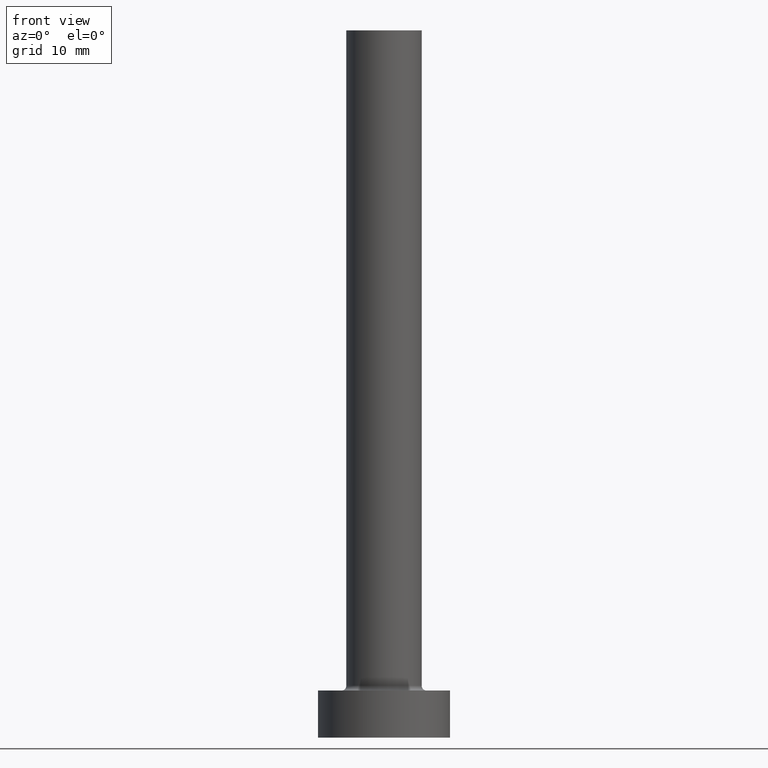
[diagram: clean part render]
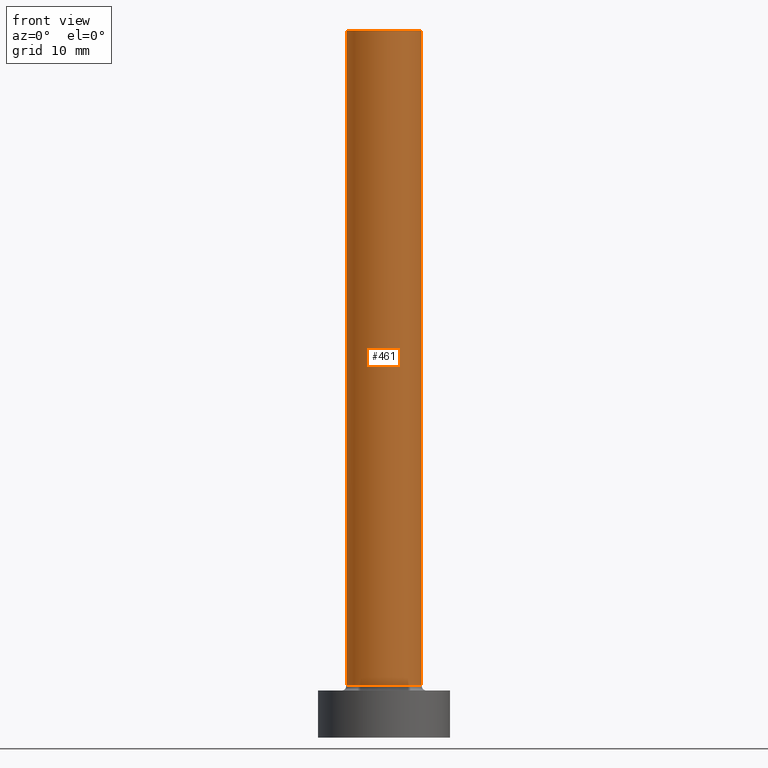
[diagram: same view with one face highlighted and labeled with its STEP entity id]
A machine part, front view. The second image highlights one B-rep face of the part: STEP entity #461.
In plain terms, the highlighted cylindrical surface (partial cylindrical patch) has radius 4 mm, axis along (-0, -0, -1).
Its self-contained STEP definition (entity closure, byte-faithful):
#17 = CARTESIAN_POINT ( 'NONE',  ( -4.000000000000000000, 0.000000000000000000, 75.00000000000001421 ) ) ;
#22 = AXIS2_PLACEMENT_3D ( 'NONE', #460, #39, #188 ) ;
#35 = AXIS2_PLACEMENT_3D ( 'NONE', #434, #364, #42 ) ;
#39 = DIRECTION ( 'NONE',  ( 0.000000000000000000, 0.000000000000000000, 1.000000000000000000 ) ) ;
#42 = DIRECTION ( 'NONE',  ( -1.000000000000000000, 0.000000000000000000, 0.000000000000000000 ) ) ;
#47 = VECTOR ( 'NONE', #339, 1000.000000000000000 ) ;
#86 = CARTESIAN_POINT ( 'NONE',  ( 4.000000000000000000, 4.898587196589412829E-16, 75.00000000000001421 ) ) ;
#104 = CIRCLE ( 'NONE', #295, 4.000000000000000000 ) ;
#185 = LINE ( 'NONE', #432, #271 ) ;
#188 = DIRECTION ( 'NONE',  ( 1.000000000000000000, 0.000000000000000000, 0.000000000000000000 ) ) ;
#208 = ORIENTED_EDGE ( 'NONE', *, *, #354, .T. ) ;
#213 = CIRCLE ( 'NONE', #22, 4.000000000000000000 ) ;
#214 = VERTEX_POINT ( 'NONE', #452 ) ;
#222 = DIRECTION ( 'NONE',  ( -0.000000000000000000, -0.000000000000000000, -1.000000000000000000 ) ) ;
#234 = CARTESIAN_POINT ( 'NONE',  ( 0.000000000000000000, 0.000000000000000000, 5.500000000000005329 ) ) ;
#238 = LINE ( 'NONE', #277, #47 ) ;
#243 = DIRECTION ( 'NONE',  ( 1.000000000000000000, 0.000000000000000000, 0.000000000000000000 ) ) ;
#244 = VERTEX_POINT ( 'NONE', #17 ) ;
#252 = VERTEX_POINT ( 'NONE', #86 ) ;
#256 = FACE_OUTER_BOUND ( 'NONE', #350, .T. ) ;
#271 = VECTOR ( 'NONE', #222, 1000.000000000000000 ) ;
#274 = EDGE_CURVE ( 'NONE', #244, #214, #238, .T. ) ;
#277 = CARTESIAN_POINT ( 'NONE',  ( -4.000000000000000000, 0.000000000000000000, 75.00000000000001421 ) ) ;
#295 = AXIS2_PLACEMENT_3D ( 'NONE', #234, #371, #243 ) ;
#296 = CYLINDRICAL_SURFACE ( 'NONE', #35, 4.000000000000000000 ) ;
#323 = CARTESIAN_POINT ( 'NONE',  ( 4.000000000000000000, 4.898587196589412829E-16, 5.500000000000005329 ) ) ;
#339 = DIRECTION ( 'NONE',  ( -0.000000000000000000, -0.000000000000000000, -1.000000000000000000 ) ) ;
#341 = ORIENTED_EDGE ( 'NONE', *, *, #429, .F. ) ;
#350 = EDGE_LOOP ( 'NONE', ( #341, #418, #379, #208 ) ) ;
#354 = EDGE_CURVE ( 'NONE', #214, #402, #104, .T. ) ;
#364 = DIRECTION ( 'NONE',  ( -0.000000000000000000, -0.000000000000000000, -1.000000000000000000 ) ) ;
#371 = DIRECTION ( 'NONE',  ( 0.000000000000000000, 0.000000000000000000, 1.000000000000000000 ) ) ;
#379 = ORIENTED_EDGE ( 'NONE', *, *, #274, .T. ) ;
#401 = EDGE_CURVE ( 'NONE', #244, #252, #213, .T. ) ;
#402 = VERTEX_POINT ( 'NONE', #323 ) ;
#418 = ORIENTED_EDGE ( 'NONE', *, *, #401, .F. ) ;
#429 = EDGE_CURVE ( 'NONE', #252, #402, #185, .T. ) ;
#432 = CARTESIAN_POINT ( 'NONE',  ( 4.000000000000000000, 4.898587196589412829E-16, 75.00000000000001421 ) ) ;
#434 = CARTESIAN_POINT ( 'NONE',  ( 0.000000000000000000, 0.000000000000000000, 75.00000000000001421 ) ) ;
#452 = CARTESIAN_POINT ( 'NONE',  ( -4.000000000000000000, 0.000000000000000000, 5.500000000000005329 ) ) ;
#460 = CARTESIAN_POINT ( 'NONE',  ( 0.000000000000000000, 0.000000000000000000, 75.00000000000001421 ) ) ;
#461 = ADVANCED_FACE ( 'NONE', ( #256 ), #296, .T. ) ;